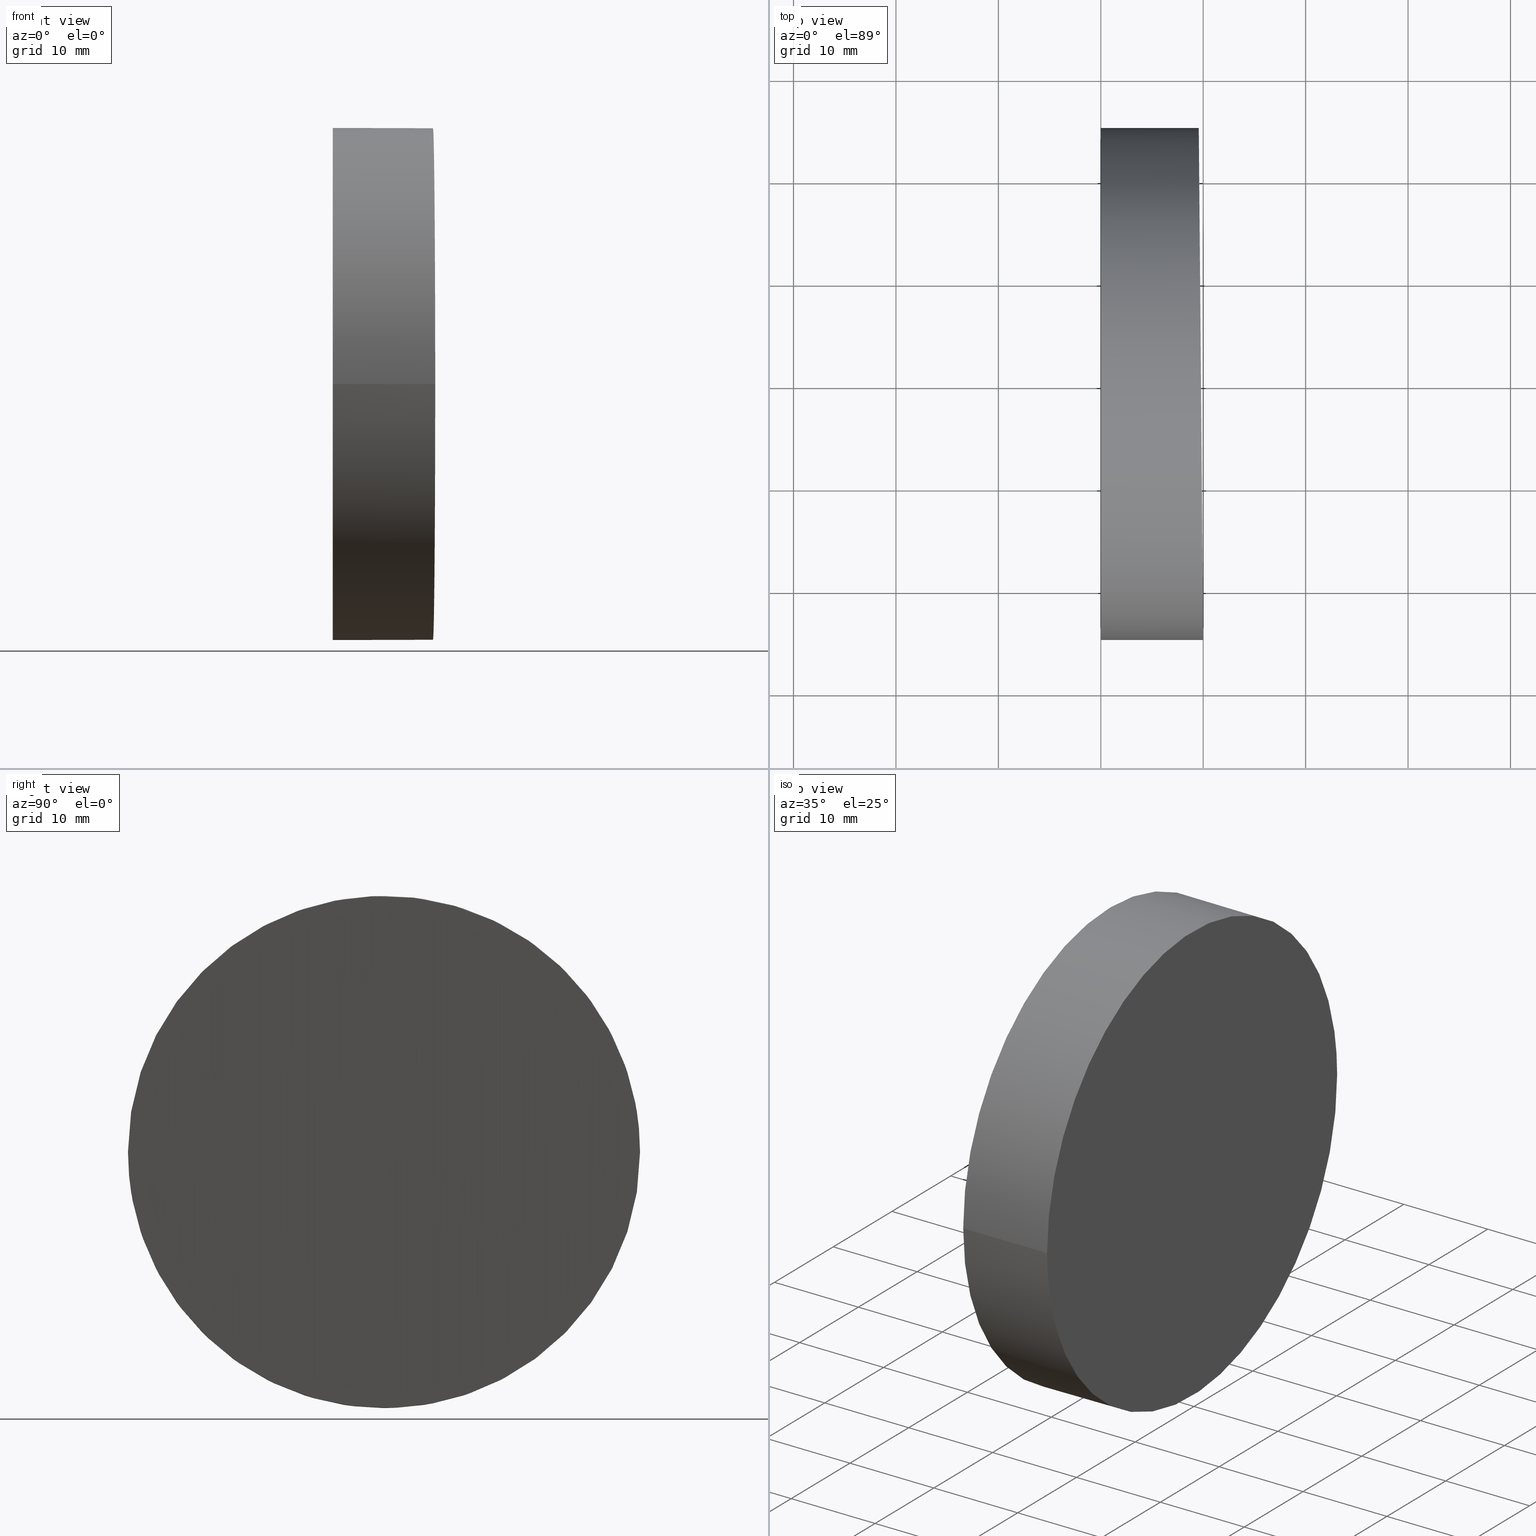
[diagram: canonical four-view strip — front | top / right | iso, engineering-drawing reading convention]
A machine part, canonical four-view strip (front | top / right | iso — engineering-drawing reading convention). The complete STEP part file that produces these views, byte-faithful:
ISO-10303-21;
HEADER;
FILE_DESCRIPTION (( 'STEP AP214' ),
    '1' );
FILE_NAME ('197505.STEP',
    '2019-07-08T06:35:02',
    ( 'user' ),
    ( '΢���й�' ),
    'SwSTEP 2.0',
    'SolidWorks 2016',
    '' );
FILE_SCHEMA (( 'AUTOMOTIVE_DESIGN' ));
ENDSEC;

DATA;
#1 = VECTOR ( 'NONE', #53, 1000.000000000000000 ) ;
#2 = ORIENTED_EDGE ( 'NONE', *, *, #117, .T. ) ;
#3 = STYLED_ITEM ( 'NONE', ( #132 ), #9 ) ;
#4 = ORIENTED_EDGE ( 'NONE', *, *, #97, .F. ) ;
#5 = DIRECTION ( 'NONE',  ( -1.000000000000000000, -1.224646799147353200E-016, -0.0000000000000000000 ) ) ;
#6 = LINE ( 'NONE', #134, #1 ) ;
#7 = ORIENTED_EDGE ( 'NONE', *, *, #41, .T. ) ;
#8 =( GEOMETRIC_REPRESENTATION_CONTEXT ( 3 ) GLOBAL_UNCERTAINTY_ASSIGNED_CONTEXT ( ( #45 ) ) GLOBAL_UNIT_ASSIGNED_CONTEXT ( ( #14, #26, #62 ) ) REPRESENTATION_CONTEXT ( 'NONE', 'WORKASPACE' ) );
#9 = ADVANCED_BREP_SHAPE_REPRESENTATION ( '197505', ( #72, #138 ), #8 ) ;
#10 = DIRECTION ( 'NONE',  ( -1.224646799147353200E-016, 1.000000000000000000, 0.0000000000000000000 ) ) ;
#11 = PRODUCT_DEFINITION_CONTEXT ( 'detailed design', #77, 'design' ) ;
#12 = SURFACE_STYLE_USAGE ( .BOTH. , #85 ) ;
#13 = ORIENTED_EDGE ( 'NONE', *, *, #34, .T. ) ;
#14 =( LENGTH_UNIT ( ) NAMED_UNIT ( * ) SI_UNIT ( .MILLI., .METRE. ) );
#15 = STYLED_ITEM ( 'NONE', ( #39 ), #72 ) ;
#16 =( NAMED_UNIT ( * ) SI_UNIT ( $, .STERADIAN. ) SOLID_ANGLE_UNIT ( ) );
#17 = CARTESIAN_POINT ( 'NONE',  ( 10.00000000000000500, -25.00000000000000000, 25.00000000000000000 ) ) ;
#18 = DIRECTION ( 'NONE',  ( 1.000000000000000000, 1.224646799147353200E-016, -0.0000000000000000000 ) ) ;
#19 = ADVANCED_FACE ( 'NONE', ( #112 ), #24, .T. ) ;
#20 = AXIS2_PLACEMENT_3D ( 'NONE', #29, #18, #10 ) ;
#21 = CLOSED_SHELL ( 'NONE', ( #19, #47, #70, #86 ) ) ;
#22 = MECHANICAL_DESIGN_GEOMETRIC_PRESENTATION_REPRESENTATION (  '', ( #3 ), #103 ) ;
#23 =( LENGTH_UNIT ( ) NAMED_UNIT ( * ) SI_UNIT ( .MILLI., .METRE. ) );
#24 = CYLINDRICAL_SURFACE ( 'NONE', #44, 25.00000000000000000 ) ;
#25 = DIRECTION ( 'NONE',  ( 1.224646799147353500E-016, -1.000000000000000000, 0.0000000000000000000 ) ) ;
#26 =( NAMED_UNIT ( * ) PLANE_ANGLE_UNIT ( ) SI_UNIT ( $, .RADIAN. ) );
#27 = CYLINDRICAL_SURFACE ( 'NONE', #55, 25.00000000000000000 ) ;
#28 = ORIENTED_EDGE ( 'NONE', *, *, #115, .F. ) ;
#29 = CARTESIAN_POINT ( 'NONE',  ( -9.190635678063450000E-016, 24.99999999999999600, 50.00000000000000000 ) ) ;
#30 =( NAMED_UNIT ( * ) PLANE_ANGLE_UNIT ( ) SI_UNIT ( $, .RADIAN. ) );
#31 = CIRCLE ( 'NONE', #119, 25.00000000000000000 ) ;
#32 = UNCERTAINTY_MEASURE_WITH_UNIT (LENGTH_MEASURE( 1.000000000000000100E-005 ), #23, 'distance_accuracy_value', 'NONE');
#33 = APPLICATION_PROTOCOL_DEFINITION ( 'draft international standard', 'automotive_design', 1998, #77 ) ;
#34 = EDGE_CURVE ( 'NONE', #120, #125, #88, .T. ) ;
#35 = SURFACE_STYLE_USAGE ( .BOTH. , #130 ) ;
#36 = ORIENTED_EDGE ( 'NONE', *, *, #41, .F. ) ;
#37 = VECTOR ( 'NONE', #78, 1000.000000000000000 ) ;
#38 = DIRECTION ( 'NONE',  ( 1.000000000000000000, 0.0000000000000000000, 0.0000000000000000000 ) ) ;
#39 = PRESENTATION_STYLE_ASSIGNMENT (( #35 ) ) ;
#40 = CARTESIAN_POINT ( 'NONE',  ( 9.563656610462413000, 25.00000000000000000, 25.00000000000000400 ) ) ;
#41 = EDGE_CURVE ( 'NONE', #109, #120, #6, .T. ) ;
#42 = CARTESIAN_POINT ( 'NONE',  ( 0.0000000000000000000, 0.0000000000000000000, 25.00000000000000000 ) ) ;
#43 = CARTESIAN_POINT ( 'NONE',  ( 0.0000000000000000000, 0.0000000000000000000, 0.0000000000000000000 ) ) ;
#44 = AXIS2_PLACEMENT_3D ( 'NONE', #99, #5, #49 ) ;
#45 = UNCERTAINTY_MEASURE_WITH_UNIT (LENGTH_MEASURE( 1.000000000000000100E-005 ), #14, 'distance_accuracy_value', 'NONE');
#46 = CARTESIAN_POINT ( 'NONE',  ( 10.00000000000000500, -25.00000000000000000, 25.00000000000000000 ) ) ;
#47 = ADVANCED_FACE ( 'NONE', ( #116 ), #58, .F. ) ;
#48 = DIRECTION ( 'NONE',  ( -1.000000000000000000, -1.224646799147353500E-016, 2.465190328815661900E-032 ) ) ;
#49 = DIRECTION ( 'NONE',  ( 1.387778780781445700E-016, -1.000000000000000000, 0.0000000000000000000 ) ) ;
#50 = ORIENTED_EDGE ( 'NONE', *, *, #115, .T. ) ;
#51 =( BOUNDED_CURVE ( )  B_SPLINE_CURVE ( 3, ( #46, #57, #122, #40 ),
 .UNSPECIFIED., .F., .T. ) 
 B_SPLINE_CURVE_WITH_KNOTS ( ( 4, 4 ),
 ( 3.141592653589793100, 6.283185307179586200 ),
 .UNSPECIFIED. ) 
 CURVE ( )  GEOMETRIC_REPRESENTATION_ITEM ( )  RATIONAL_B_SPLINE_CURVE ( ( 1.000000000000000000, 0.3333333333333333700, 0.3333333333333333700, 1.000000000000000000 ) ) 
 REPRESENTATION_ITEM ( '' )  );
#52 = FILL_AREA_STYLE ('',( #93 ) ) ;
#53 = DIRECTION ( 'NONE',  ( -1.000000000000000000, -1.224646799147353200E-016, -0.0000000000000000000 ) ) ;
#54 = ORIENTED_EDGE ( 'NONE', *, *, #126, .T. ) ;
#55 = AXIS2_PLACEMENT_3D ( 'NONE', #90, #74, #80 ) ;
#56 = PRODUCT_CONTEXT ( 'NONE', #92, 'mechanical' ) ;
#57 = CARTESIAN_POINT ( 'NONE',  ( 10.00000000000000500, -25.00000000000001100, 75.00000000000000000 ) ) ;
#58 = PLANE ( 'NONE',  #20 ) ;
#59 = PRODUCT_DEFINITION_SHAPE ( 'NONE', 'NONE',  #63 ) ;
#60 = PRODUCT_RELATED_PRODUCT_CATEGORY ( 'part', '', ( #107 ) ) ;
#61 = LINE ( 'NONE', #129, #37 ) ;
#62 =( NAMED_UNIT ( * ) SI_UNIT ( $, .STERADIAN. ) SOLID_ANGLE_UNIT ( ) );
#63 = PRODUCT_DEFINITION ( 'δ֪', '', #64, #11 ) ;
#64 = PRODUCT_DEFINITION_FORMATION_WITH_SPECIFIED_SOURCE ( '�κ�', '', #107, .NOT_KNOWN. ) ;
#65 =( NAMED_UNIT ( * ) PLANE_ANGLE_UNIT ( ) SI_UNIT ( $, .RADIAN. ) );
#66 = DIRECTION ( 'NONE',  ( 1.224646799147353500E-016, -1.000000000000000000, 0.0000000000000000000 ) ) ;
#67 = CARTESIAN_POINT ( 'NONE',  ( -3.061616997868383800E-015, 25.00000000000000000, 25.00000000000000400 ) ) ;
#68 = PRESENTATION_LAYER_ASSIGNMENT (  '', '', ( #15 ) ) ;
#69 = PLANE ( 'NONE',  #106 ) ;
#70 = ADVANCED_FACE ( 'NONE', ( #71 ), #69, .F. ) ;
#71 = FACE_OUTER_BOUND ( 'NONE', #118, .T. ) ;
#72 = MANIFOLD_SOLID_BREP ( '�г�-����1', #21 ) ;
#73 = COLOUR_RGB ( '',1.000000000000000000, 1.000000000000000000, 1.000000000000000000 ) ;
#74 = DIRECTION ( 'NONE',  ( -1.000000000000000000, -1.224646799147353200E-016, -0.0000000000000000000 ) ) ;
#75 = CARTESIAN_POINT ( 'NONE',  ( 0.0000000000000000000, 0.0000000000000000000, 25.00000000000000000 ) ) ;
#76 = FACE_OUTER_BOUND ( 'NONE', #140, .T. ) ;
#77 = APPLICATION_CONTEXT ( 'automotive_design' ) ;
#78 = DIRECTION ( 'NONE',  ( -1.000000000000000000, -1.224646799147353200E-016, -0.0000000000000000000 ) ) ;
#79 = FILL_AREA_STYLE_COLOUR ( '', #128 ) ;
#80 = DIRECTION ( 'NONE',  ( 1.387778780781445700E-016, -1.000000000000000000, 0.0000000000000000000 ) ) ;
#81 = ORIENTED_EDGE ( 'NONE', *, *, #34, .F. ) ;
#82 = AXIS2_PLACEMENT_3D ( 'NONE', #75, #48, #25 ) ;
#83 = ORIENTED_EDGE ( 'NONE', *, *, #97, .T. ) ;
#84 = CARTESIAN_POINT ( 'NONE',  ( 10.00000000000000500, -25.00000000000000400, 50.00000000000000000 ) ) ;
#85 = SURFACE_SIDE_STYLE ('',( #95 ) ) ;
#86 = ADVANCED_FACE ( 'NONE', ( #76 ), #27, .T. ) ;
#87 = CARTESIAN_POINT ( 'NONE',  ( 9.563656610462413000, 25.00000000000000000, 25.00000000000000400 ) ) ;
#88 = CIRCLE ( 'NONE', #82, 25.00000000000000000 ) ;
#89 = SURFACE_STYLE_FILL_AREA ( #52 ) ;
#90 = CARTESIAN_POINT ( 'NONE',  ( 10.00000000000000000, 1.224646799147353300E-015, 25.00000000000000000 ) ) ;
#91 = CARTESIAN_POINT ( 'NONE',  ( 10.00000000000000500, -25.00000000000000000, -25.00000000000001100 ) ) ;
#92 = APPLICATION_CONTEXT ( 'automotive_design' ) ;
#93 = FILL_AREA_STYLE_COLOUR ( '', #73 ) ;
#94 = CARTESIAN_POINT ( 'NONE',  ( 9.563656610462413000, 25.00000000000000000, 25.00000000000000400 ) ) ;
#95 = SURFACE_STYLE_FILL_AREA ( #131 ) ;
#96 = DIRECTION ( 'NONE',  ( 0.008726535498366981900, -0.9999619230641713100, 0.0000000000000000000 ) ) ;
#97 = EDGE_CURVE ( 'NONE', #109, #137, #102, .T. ) ;
#98 =( LENGTH_UNIT ( ) NAMED_UNIT ( * ) SI_UNIT ( .MILLI., .METRE. ) );
#99 = CARTESIAN_POINT ( 'NONE',  ( 10.00000000000000000, 1.224646799147353300E-015, 25.00000000000000000 ) ) ;
#100 = DIRECTION ( 'NONE',  ( 0.0000000000000000000, 0.0000000000000000000, 1.000000000000000000 ) ) ;
#101 = SHAPE_DEFINITION_REPRESENTATION ( #59, #9 ) ;
#102 =( BOUNDED_CURVE ( )  B_SPLINE_CURVE ( 3, ( #87, #139, #91, #111 ),
 .UNSPECIFIED., .F., .T. ) 
 B_SPLINE_CURVE_WITH_KNOTS ( ( 4, 4 ),
 ( 0.0000000000000000000, 3.141592653589793100 ),
 .UNSPECIFIED. ) 
 CURVE ( )  GEOMETRIC_REPRESENTATION_ITEM ( )  RATIONAL_B_SPLINE_CURVE ( ( 1.000000000000000000, 0.3333333333333333700, 0.3333333333333333700, 1.000000000000000000 ) ) 
 REPRESENTATION_ITEM ( '' )  );
#103 =( GEOMETRIC_REPRESENTATION_CONTEXT ( 3 ) GLOBAL_UNCERTAINTY_ASSIGNED_CONTEXT ( ( #114 ) ) GLOBAL_UNIT_ASSIGNED_CONTEXT ( ( #98, #30, #110 ) ) REPRESENTATION_CONTEXT ( 'NONE', 'WORKASPACE' ) );
#104 = EDGE_LOOP ( 'NONE', ( #50, #13 ) ) ;
#105 = EDGE_LOOP ( 'NONE', ( #54, #7, #28, #121 ) ) ;
#106 = AXIS2_PLACEMENT_3D ( 'NONE', #84, #124, #96 ) ;
#107 = PRODUCT ( '197505', '197505', '', ( #56 ) ) ;
#108 = PRESENTATION_LAYER_ASSIGNMENT (  '', '', ( #3 ) ) ;
#109 = VERTEX_POINT ( 'NONE', #94 ) ;
#110 =( NAMED_UNIT ( * ) SI_UNIT ( $, .STERADIAN. ) SOLID_ANGLE_UNIT ( ) );
#111 = CARTESIAN_POINT ( 'NONE',  ( 10.00000000000000500, -25.00000000000000000, 25.00000000000000000 ) ) ;
#112 = FACE_OUTER_BOUND ( 'NONE', #105, .T. ) ;
#113 = APPLICATION_PROTOCOL_DEFINITION ( 'draft international standard', 'automotive_design', 1998, #92 ) ;
#114 = UNCERTAINTY_MEASURE_WITH_UNIT (LENGTH_MEASURE( 1.000000000000000100E-005 ), #98, 'distance_accuracy_value', 'NONE');
#115 = EDGE_CURVE ( 'NONE', #125, #120, #31, .T. ) ;
#116 = FACE_OUTER_BOUND ( 'NONE', #104, .T. ) ;
#117 = EDGE_CURVE ( 'NONE', #137, #125, #61, .T. ) ;
#118 = EDGE_LOOP ( 'NONE', ( #123, #4 ) ) ;
#119 = AXIS2_PLACEMENT_3D ( 'NONE', #42, #133, #66 ) ;
#120 = VERTEX_POINT ( 'NONE', #67 ) ;
#121 = ORIENTED_EDGE ( 'NONE', *, *, #117, .F. ) ;
#122 = CARTESIAN_POINT ( 'NONE',  ( 9.563656610462413000, 25.00000000000000000, 75.00000000000000000 ) ) ;
#123 = ORIENTED_EDGE ( 'NONE', *, *, #126, .F. ) ;
#124 = DIRECTION ( 'NONE',  ( -0.9999619230641714200, -0.008726535498366983600, 0.0000000000000000000 ) ) ;
#125 = VERTEX_POINT ( 'NONE', #127 ) ;
#126 = EDGE_CURVE ( 'NONE', #137, #109, #51, .T. ) ;
#127 = CARTESIAN_POINT ( 'NONE',  ( 3.061616997868383800E-015, -25.00000000000000000, 25.00000000000000000 ) ) ;
#128 = COLOUR_RGB ( '',1.000000000000000000, 1.000000000000000000, 1.000000000000000000 ) ;
#129 = CARTESIAN_POINT ( 'NONE',  ( 10.00000000000000400, -25.00000000000000000, 25.00000000000000000 ) ) ;
#130 = SURFACE_SIDE_STYLE ('',( #89 ) ) ;
#131 = FILL_AREA_STYLE ('',( #79 ) ) ;
#132 = PRESENTATION_STYLE_ASSIGNMENT (( #12 ) ) ;
#133 = DIRECTION ( 'NONE',  ( -1.000000000000000000, -1.224646799147353500E-016, 2.465190328815661900E-032 ) ) ;
#134 = CARTESIAN_POINT ( 'NONE',  ( 9.999999999999996400, 25.00000000000000000, 25.00000000000000400 ) ) ;
#135 = MECHANICAL_DESIGN_GEOMETRIC_PRESENTATION_REPRESENTATION (  '', ( #15 ), #136 ) ;
#136 =( GEOMETRIC_REPRESENTATION_CONTEXT ( 3 ) GLOBAL_UNCERTAINTY_ASSIGNED_CONTEXT ( ( #32 ) ) GLOBAL_UNIT_ASSIGNED_CONTEXT ( ( #23, #65, #16 ) ) REPRESENTATION_CONTEXT ( 'NONE', 'WORKASPACE' ) );
#137 = VERTEX_POINT ( 'NONE', #17 ) ;
#138 = AXIS2_PLACEMENT_3D ( 'NONE', #43, #100, #38 ) ;
#139 = CARTESIAN_POINT ( 'NONE',  ( 9.563656610462413000, 25.00000000000000000, -25.00000000000001100 ) ) ;
#140 = EDGE_LOOP ( 'NONE', ( #36, #83, #2, #81 ) ) ;
ENDSEC;
END-ISO-10303-21;
